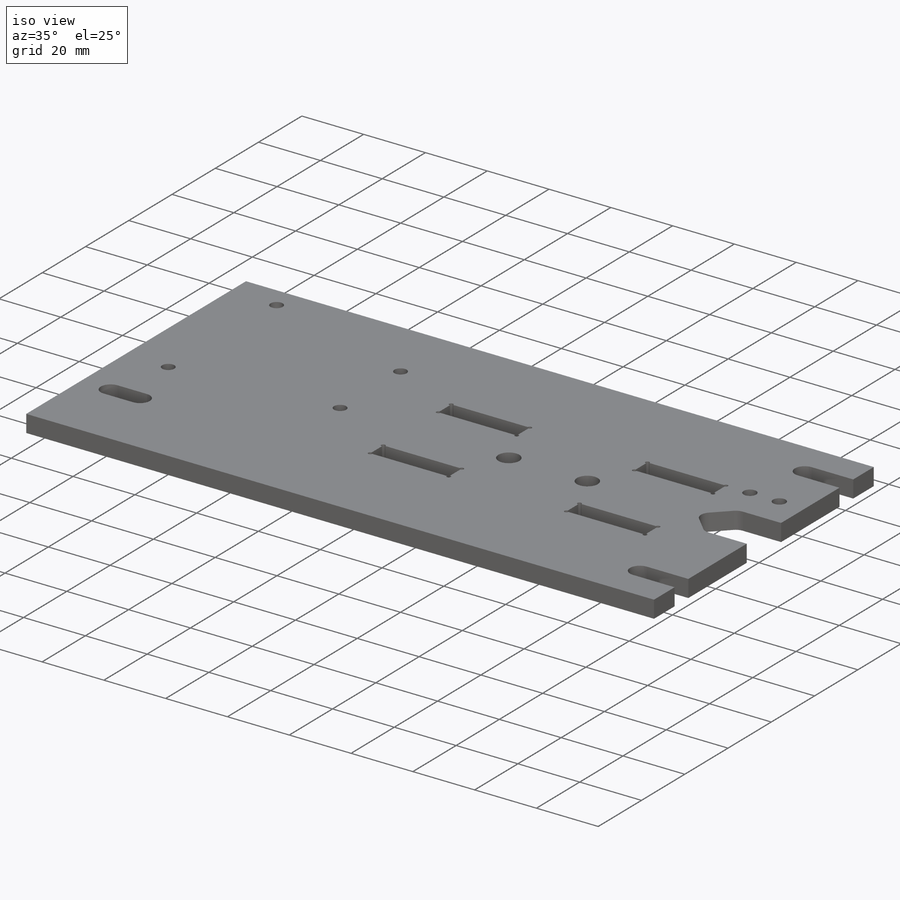
[diagram: iso view]
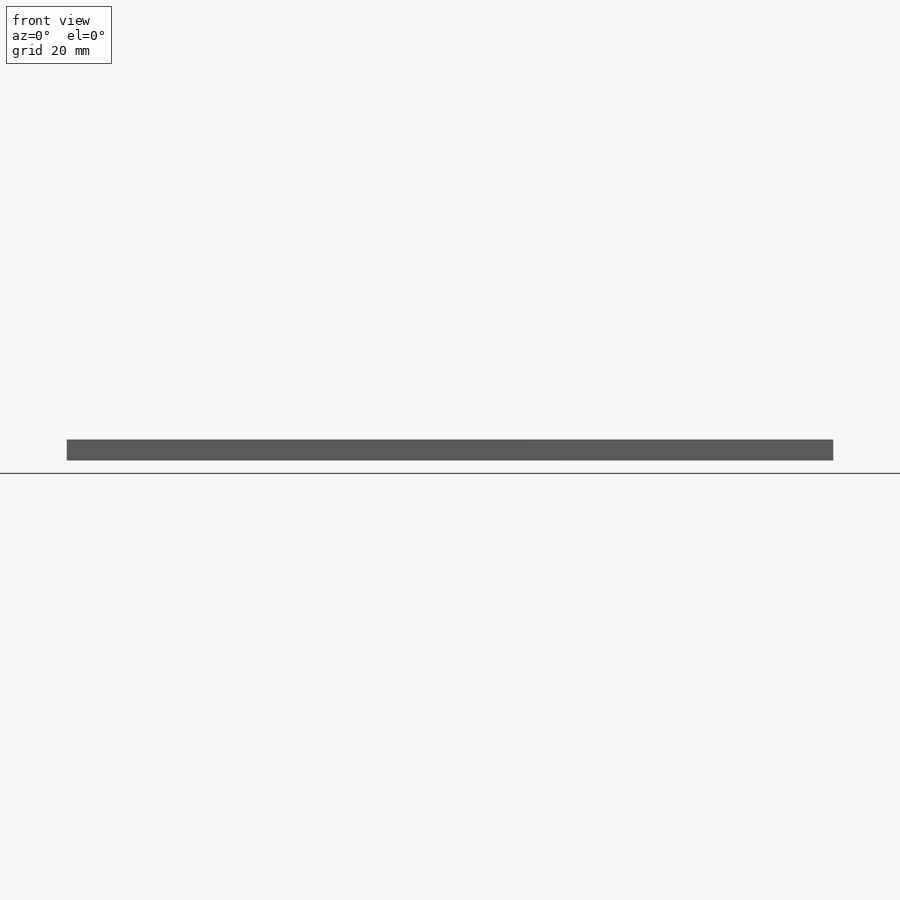
[diagram: front view]
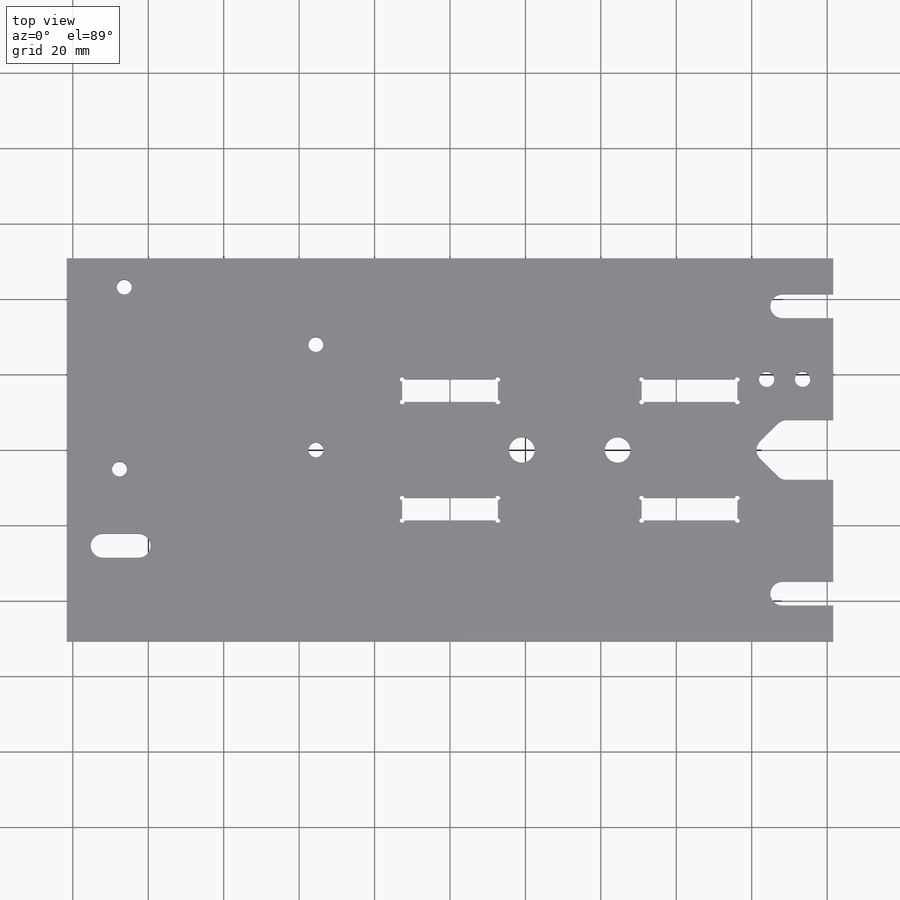
[diagram: top view]
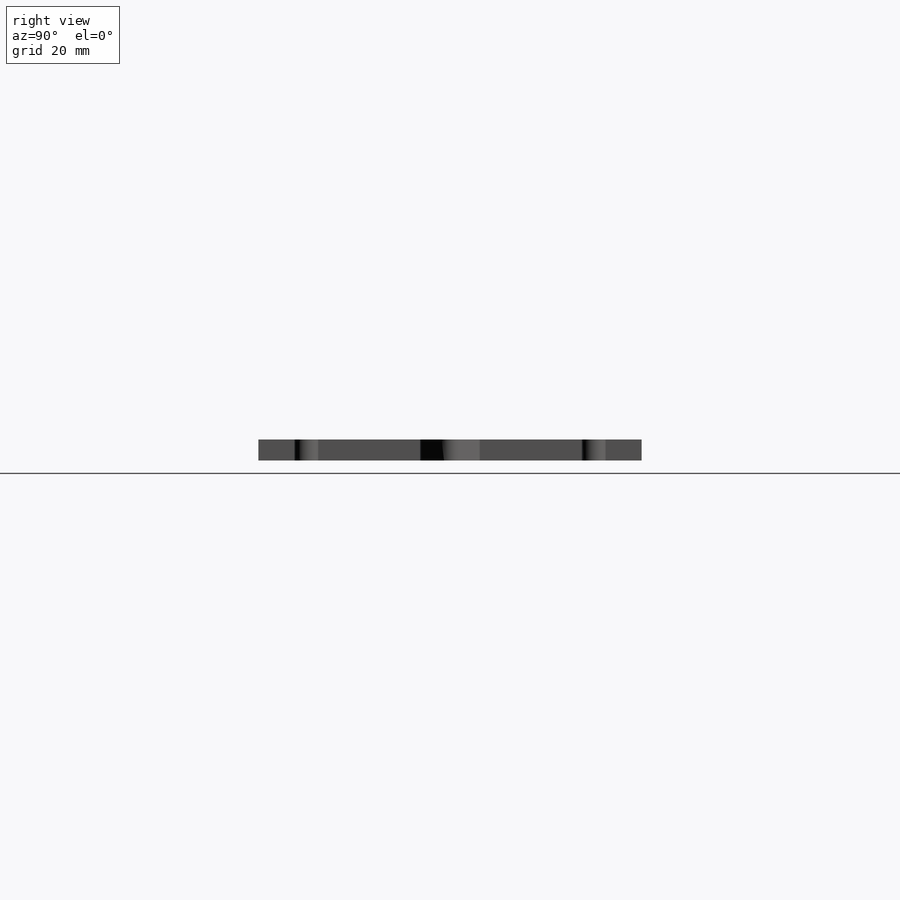
[diagram: right view]
SOLIDWORKS PART (.sldprt)
format: sldprt  version: not decoded by parser v0  size: 531,968 bytes
history: native  units: mm
features: sketch x15, cut_extrude x5, hole x4, mirror x3, material x1, extrude x1, plane x1 (+12 scaffold rows collapsed)
feature tree (42):
  scaffold x12  (default folders/planes/origin — collapsed)
  material  "Acrylic (Medium-high impact)"
  sketch  "Sketch1"  dims[c1.D3=6.35mm c1.D6=12.7mm c1.D7=3.175mm c1.D9=3.175mm c1.D1=203.2mm c1.D2=101.6mm c1.D4=12.7mm c1.D5=12.7mm c2.D6=6.35mm c2.D7=6.35mm c3.D6=6.35mm c3.D7=~25.353339mm c4.D7=90.0deg c4.D8=15.875mm]
  extrude  "Boss-Extrude1"  Depth=5.588mm
  hole  "1/4 Clearance Hole1"  Diameter=6.35mm Depth=5.588mm
  sketch  "Sketch3"  dims[D1=76.2mm D2=~0.79375mm]
  sketch  "Sketch2"  dims[hole-wizard template sketch: 60 standard entries collapsed; hole parameters kept: c18.Thru Hole Depth=5.588mm]
  sketch  "Sketch4"
  cut_extrude  "Cut-Extrude1"  [1 undecoded]
  mirror  "Mirror1"
  sketch  "Sketch5"  dims[D1=3.175mm]
  cut_extrude  "Cut-Extrude2"  [1 undecoded]
  sketch  "Sketch6"  dims[c1.D1=50.8mm c1.D2=15.24mm c1.D3=27.94mm c1.D4=5.08mm c1.D5=50.8mm c1.D6=13.97mm c1.D7=68.58mm c1.D8=2.54mm c1.D9=53.34mm c1.D10=5.08mm c1.D11=5.08mm c2.D6=13.97mm c2.D12=1.27mm]
  hole  "#4 Clearance Hole1"  Diameter=3.937mm Depth=5.588mm
  sketch  "Sketch8"
  sketch  "Sketch7"  dims[hole-wizard template sketch: 59 standard entries collapsed; hole parameters kept: c18.Thru Hole Dia.=3.937mm c18.Thru Hole Depth=5.588mm]
  sketch  "Sketch9"  dims[c1.D6=0.635mm c1.D7=~6.028167mm c1.D1=25.4mm c1.D2=25.4mm c1.D3=12.7mm c1.D4=6.0198mm c1.D5=25.4mm c2.D1=25.4mm c2.D2=25.4mm c2.D5=63.5mm c2.D7=6.35mm c2.D8=6.35mm]
  cut_extrude  "Cut-Extrude3"  [1 undecoded]
  sketch  "Sketch15"  dims[D1=1.27mm]
  cut_extrude  "Cut-Extrude5"  [1 undecoded]
  plane  "Plane1"
  mirror  "Mirror3"
  mirror  "Mirror2"
  hole  "#10 Clearance Hole1"  Diameter=6.7818mm Depth=5.588mm
  sketch  "Sketch11"  dims[D1=25.4mm]
  sketch  "Sketch10"  dims[hole-wizard template sketch: 59 standard entries collapsed; hole parameters kept: c18.Thru Hole Dia.=6.7818mm c18.Thru Hole Depth=5.588mm]
  hole  "Tap Drill for #4 Helicoil1"  Diameter=4.064mm Depth=6.35mm
  sketch  "Sketch13"  dims[D1=10.795mm D2=9.525mm D3=8.1153mm]
  sketch  "Sketch12"  dims[hole-wizard template sketch: 46 standard entries collapsed; hole parameters kept: c15.Hole Dia.=4.064mm c15.Hole Depth=6.35mm c15.D3=~14.816244mm c15.Drill Angle=118.0deg]
  sketch  "Sketch14"  dims[D1=6.35mm]
  cut_extrude  "Cut-Extrude4"  [1 undecoded]
decode coverage: 18 of 28 modeling features carry decoded parameters
note: ~ marks probable driven/reference dimensions
note: 5 parameter values undecoded
summary: no parameter record found for 5 features; Diameter pulled from absorbed wizard sketch
note: suppression state not decoded; provenance and decode notes live in map.json
